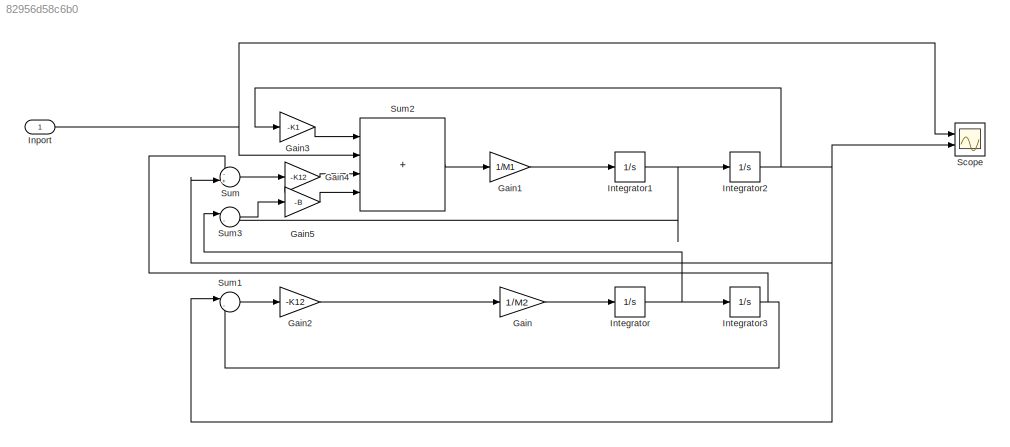
MODEL slx_82956d58c6b0
KIND model
CONFIG AbsTol = auto
CONFIG EnableMultiTasking = off
CONFIG FixedStep = auto
CONFIG MaxStep = 0.05
CONFIG MinStep = auto
CONFIG RelTol = 1e-3
CONFIG SampleTimeConstraint = Unconstrained
CONFIG SolverName = VariableStepAuto
CONFIG StartTime = 0.0
CONFIG StopTime = 10.0
WORKSPACE source: mxarray member
WORKSPACE B = 50
WORKSPACE K1 = 50
WORKSPACE M1 = 100
BLOCK [Gain] Gain
  Gain = 1/M2
BLOCK [Gain] Gain1
  Gain = 1/M1
BLOCK [Gain] Gain2
  Gain = -K12
BLOCK [Gain] Gain3
  Gain = -K1
BLOCK [Gain] Gain4
  Gain = -K12
BLOCK [Gain] Gain5
  Gain = -B
BLOCK [Inport] Inport
BLOCK [Integrator] Integrator
  Ports = [1, 1]
BLOCK [Integrator] Integrator1
  Ports = [1, 1]
BLOCK [Integrator] Integrator2
  Ports = [1, 1]
BLOCK [Integrator] Integrator3
  Ports = [1, 1]
BLOCK [Scope] Scope
  Floating = off
  NumInputPorts = 2
  Ports = [2]
  ScopeSpecificationString = Simulink.scopes.TimeScopeBlockCfg('CurrentConfiguration', extmgr.ConfigurationSet(extmgr.Configuration('Core','General UI',true),extmgr.Configuration('Core','Source UI',true),extmgr.Configuration('Sources','WiredSimulink',true),extmgr.Configuration('Visuals','Time Domain',true,'SerializedDisplays',{struct('MinYLimReal','-2.49996','MaxYLimReal','2.4998','YLabelReal','','MinYLimMag','0.00000','MaxYL...<+1999ch>
BLOCK [Sum] Sum
  Inputs = -+|
  Ports = [2, 1]
BLOCK [Sum] Sum1
  Inputs = |-+
  Ports = [2, 1]
BLOCK [Sum] Sum2
  IconShape = rectangular
  Inputs = ++++
  Ports = [4, 1]
BLOCK [Sum] Sum3
  Inputs = |-+
  Ports = [2, 1]
LINE Gain1:1 -> Integrator1:1
LINE Gain2:1 -> Gain:1
LINE Gain3:1 -> Sum2:1
LINE Gain4:1 -> Sum2:3
LINE Gain5:1 -> Sum2:4
LINE Gain:1 -> Integrator:1
NET Inport:1 -> Scope:1, Sum2:2
NET Integrator1:1 -> Integrator2:1, Sum3:2
NET Integrator2:1 -> Gain3:1, Scope:2, Sum1:1, Sum:2
NET Integrator3:1 -> Sum1:2, Sum:1
NET Integrator:1 -> Integrator3:1, Sum3:1
LINE Sum1:1 -> Gain2:1
LINE Sum2:1 -> Gain1:1
LINE Sum3:1 -> Gain5:1
LINE Sum:1 -> Gain4:1
note: NET lines group one-source signal fan-out (src -> all destinations, sorted); 1:1 wires keep LINE
